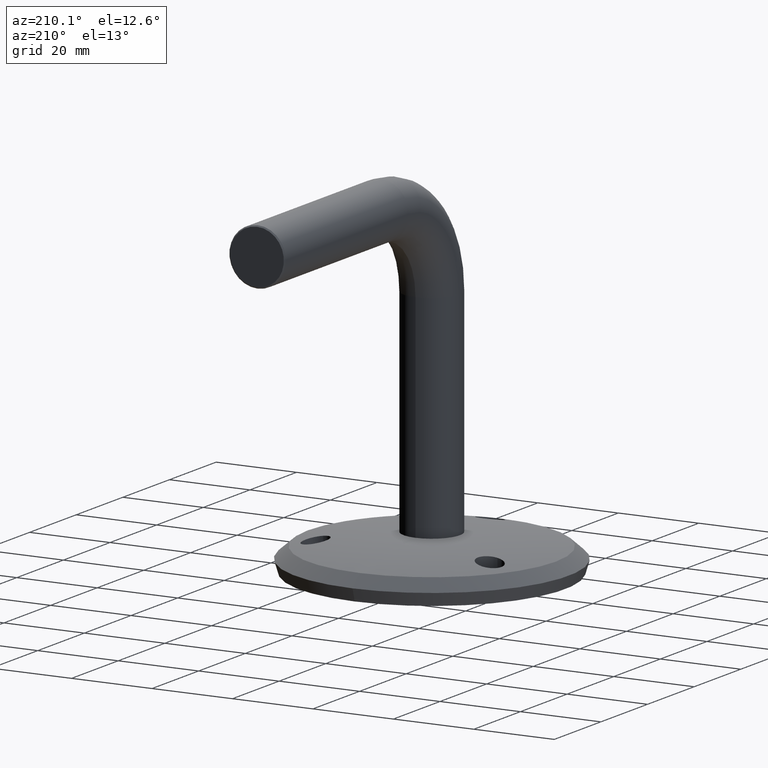
[diagram: clean part render]
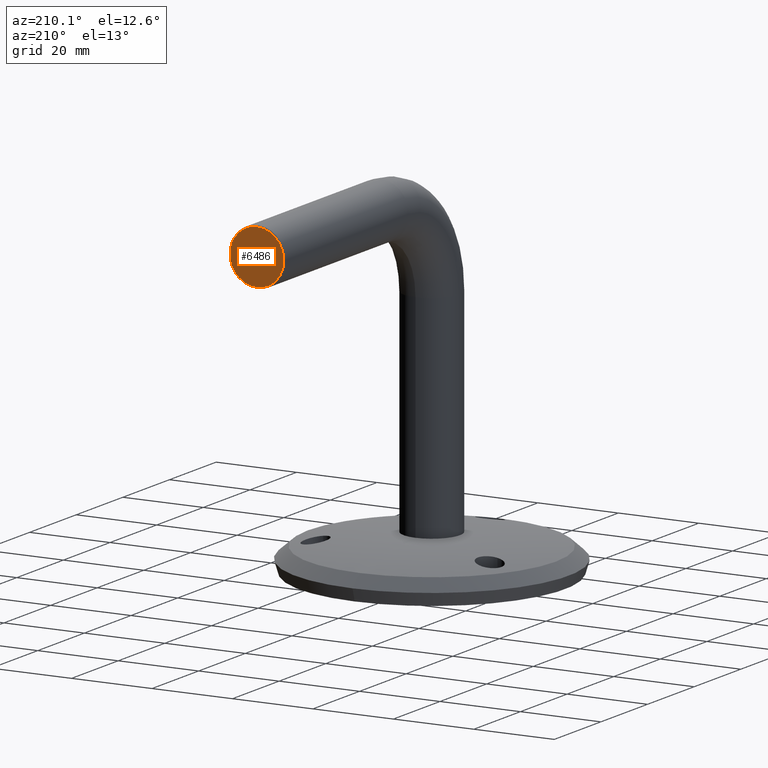
[diagram: same view with one face highlighted and labeled with its STEP entity id]
A machine part, auxiliary view. The second image highlights one B-rep face of the part: STEP entity #6486.
In plain terms, the highlighted planar face has unit normal (0, 1, -0).
Its self-contained STEP definition (entity closure, byte-faithful):
#1081 = CIRCLE ( 'NONE', #13551, 6.699999999999997513 ) ;
#1147 = FACE_OUTER_BOUND ( 'NONE', #7386, .T. ) ;
#2285 = AXIS2_PLACEMENT_3D ( 'NONE', #7581, #10678, #10720 ) ;
#3601 = AXIS2_PLACEMENT_3D ( 'NONE', #8071, #9256, #12411 ) ;
#4642 = ORIENTED_EDGE ( 'NONE', *, *, #12590, .T. ) ;
#5457 = PLANE ( 'NONE',  #2285 ) ;
#6486 = ADVANCED_FACE ( 'NONE', ( #1147 ), #5457, .T. ) ;
#6525 = CARTESIAN_POINT ( 'NONE',  ( 0.000000000000000000, 74.99999999999997158, 68.30000000000001137 ) ) ;
#6840 = CARTESIAN_POINT ( 'NONE',  ( 8.388830574159382695E-16, 74.99999999999997158, 81.70000000000000284 ) ) ;
#7386 = EDGE_LOOP ( 'NONE', ( #12112, #4642 ) ) ;
#7581 = CARTESIAN_POINT ( 'NONE',  ( 0.000000000000000000, 74.99999999999997158, 75.00000000000001421 ) ) ;
#7645 = CIRCLE ( 'NONE', #3601, 6.699999999999997513 ) ;
#8071 = CARTESIAN_POINT ( 'NONE',  ( 0.000000000000000000, 74.99999999999997158, 75.00000000000001421 ) ) ;
#8790 = EDGE_CURVE ( 'NONE', #12434, #11460, #7645, .T. ) ;
#9256 = DIRECTION ( 'NONE',  ( 0.000000000000000000, 1.000000000000000000, -1.311299159921008727E-16 ) ) ;
#10171 = CARTESIAN_POINT ( 'NONE',  ( 0.000000000000000000, 74.99999999999997158, 75.00000000000001421 ) ) ;
#10678 = DIRECTION ( 'NONE',  ( 0.000000000000000000, 1.000000000000000000, -1.311299159921008727E-16 ) ) ;
#10720 = DIRECTION ( 'NONE',  ( 1.000000000000000000, 0.000000000000000000, 0.000000000000000000 ) ) ;
#11433 = DIRECTION ( 'NONE',  ( 0.000000000000000000, 1.000000000000000000, -1.311299159921008727E-16 ) ) ;
#11460 = VERTEX_POINT ( 'NONE', #6840 ) ;
#12112 = ORIENTED_EDGE ( 'NONE', *, *, #8790, .T. ) ;
#12411 = DIRECTION ( 'NONE',  ( 0.000000000000000000, 0.000000000000000000, 1.000000000000000000 ) ) ;
#12434 = VERTEX_POINT ( 'NONE', #6525 ) ;
#12590 = EDGE_CURVE ( 'NONE', #11460, #12434, #1081, .T. ) ;
#13551 = AXIS2_PLACEMENT_3D ( 'NONE', #10171, #11433, #13566 ) ;
#13566 = DIRECTION ( 'NONE',  ( 0.000000000000000000, 0.000000000000000000, 1.000000000000000000 ) ) ;